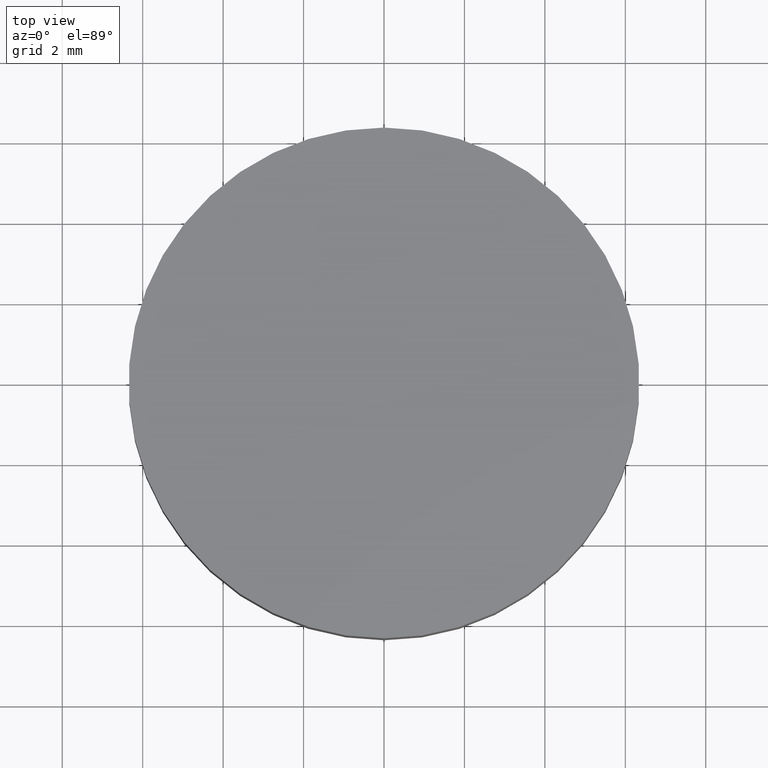
[diagram: clean part render]
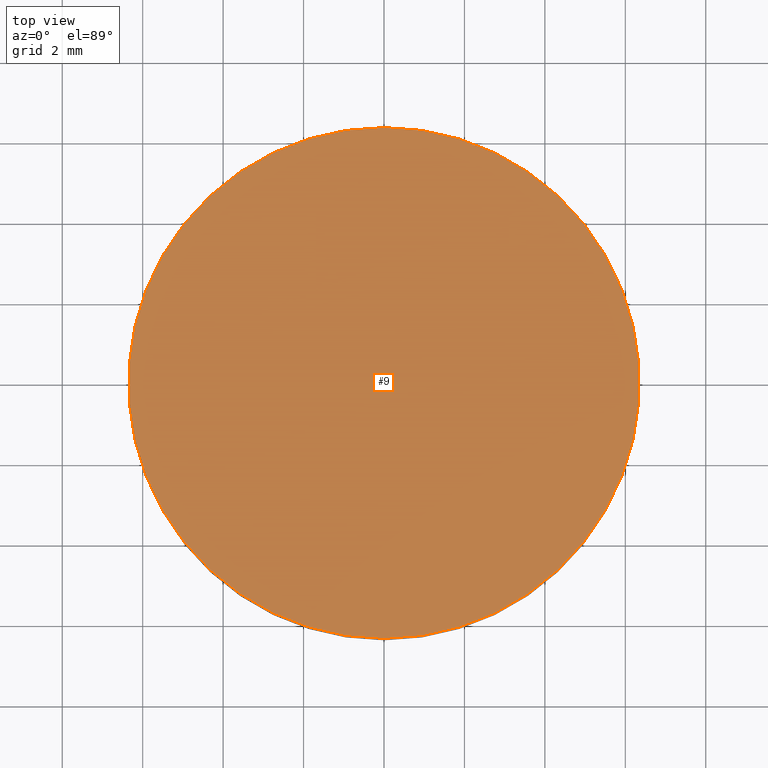
[diagram: same view with one face highlighted and labeled with its STEP entity id]
A machine part, top view. The second image highlights one B-rep face of the part: STEP entity #9.
In plain terms, the highlighted planar face has unit normal (0, 0, 1).
Its self-contained STEP definition (entity closure, byte-faithful):
#1 = DIRECTION ( 'NONE',  ( 1.000000000000000000, 0.0000000000000000000, -0.0000000000000000000 ) ) ;
#8 = CARTESIAN_POINT ( 'NONE',  ( 2.498001805406599800E-016, 8.881784197001237500E-016, 3.000000000000000000 ) ) ;
#9 = ADVANCED_FACE ( 'NONE', ( #14 ), #138, .T. ) ;
#14 = FACE_OUTER_BOUND ( 'NONE', #49, .T. ) ;
#18 = VERTEX_POINT ( 'NONE', #103 ) ;
#22 = CARTESIAN_POINT ( 'NONE',  ( 0.0000000000000000000, 13.15799999999999900, 3.000000000000000000 ) ) ;
#28 = AXIS2_PLACEMENT_3D ( 'NONE', #22, #53, #1 ) ;
#39 = DIRECTION ( 'NONE',  ( 2.283316566636270100E-032, 1.187235674646670000E-016, -1.000000000000000000 ) ) ;
#49 = EDGE_LOOP ( 'NONE', ( #150, #89 ) ) ;
#50 = EDGE_CURVE ( 'NONE', #128, #18, #197, .T. ) ;
#53 = DIRECTION ( 'NONE',  ( 0.0000000000000000000, 0.0000000000000000000, 1.000000000000000000 ) ) ;
#55 = DIRECTION ( 'NONE',  ( 2.283316566636270100E-032, 1.187235674646670000E-016, -1.000000000000000000 ) ) ;
#57 = DIRECTION ( 'NONE',  ( 0.0000000000000000000, -1.000000000000000000, -1.365923996832131600E-016 ) ) ;
#69 = CARTESIAN_POINT ( 'NONE',  ( 2.498001805406599800E-016, -6.349999999999998800, 2.999999999999999100 ) ) ;
#89 = ORIENTED_EDGE ( 'NONE', *, *, #214, .F. ) ;
#103 = CARTESIAN_POINT ( 'NONE',  ( 1.027450897999229200E-015, 6.350000000000000500, 3.000000000000000900 ) ) ;
#122 = AXIS2_PLACEMENT_3D ( 'NONE', #8, #55, #57 ) ;
#128 = VERTEX_POINT ( 'NONE', #69 ) ;
#138 = PLANE ( 'NONE',  #28 ) ;
#150 = ORIENTED_EDGE ( 'NONE', *, *, #50, .F. ) ;
#152 = DIRECTION ( 'NONE',  ( 0.0000000000000000000, -1.000000000000000000, -1.365923996832131600E-016 ) ) ;
#166 = AXIS2_PLACEMENT_3D ( 'NONE', #200, #39, #152 ) ;
#185 = CIRCLE ( 'NONE', #122, 6.349999999999999600 ) ;
#197 = CIRCLE ( 'NONE', #166, 6.349999999999999600 ) ;
#200 = CARTESIAN_POINT ( 'NONE',  ( 2.498001805406599800E-016, 8.881784197001237500E-016, 3.000000000000000000 ) ) ;
#214 = EDGE_CURVE ( 'NONE', #18, #128, #185, .T. ) ;